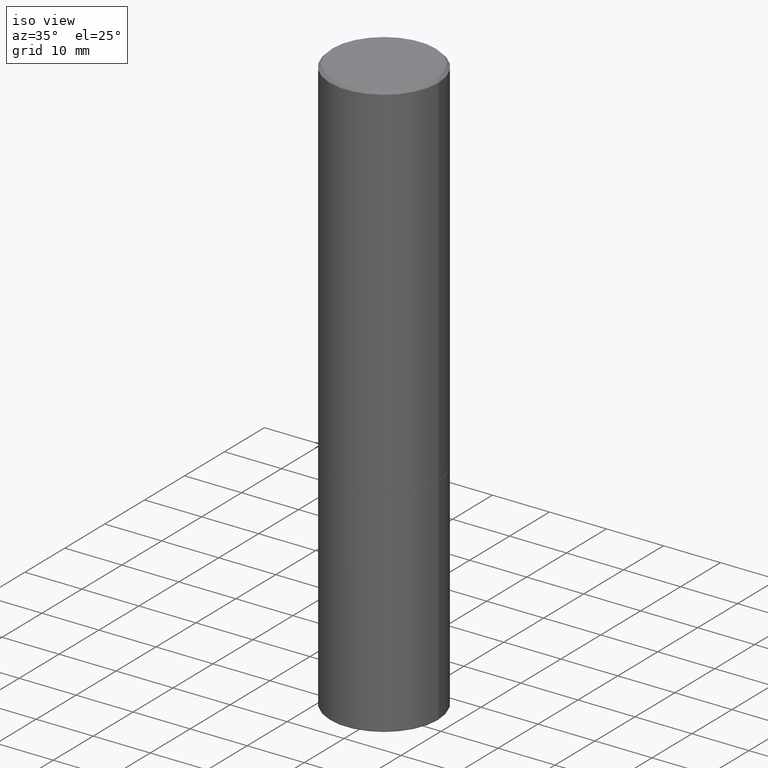
[diagram: clean part render]
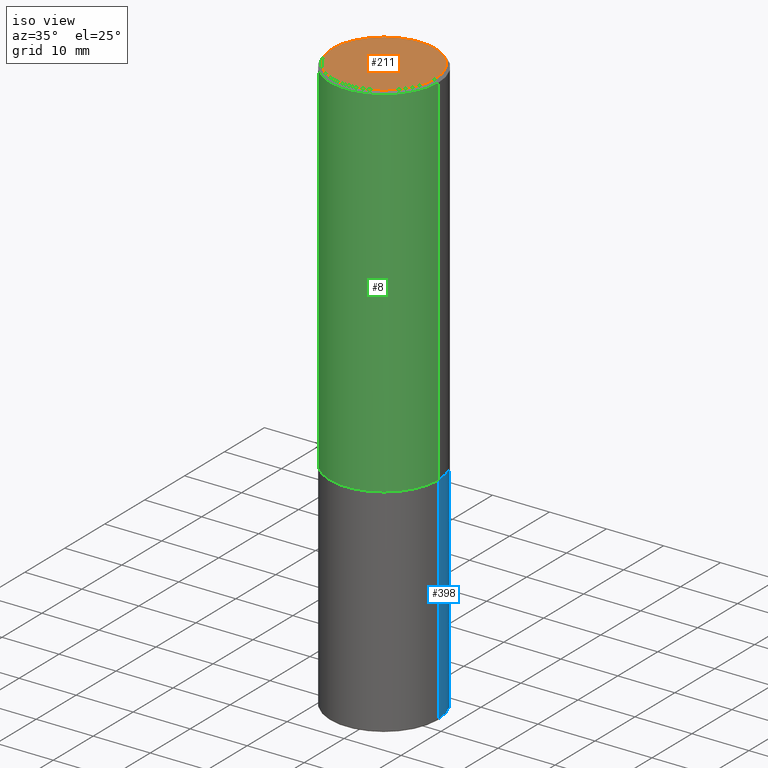
[diagram: same view with three faces highlighted in distinct colors, each labeled with its STEP entity id]
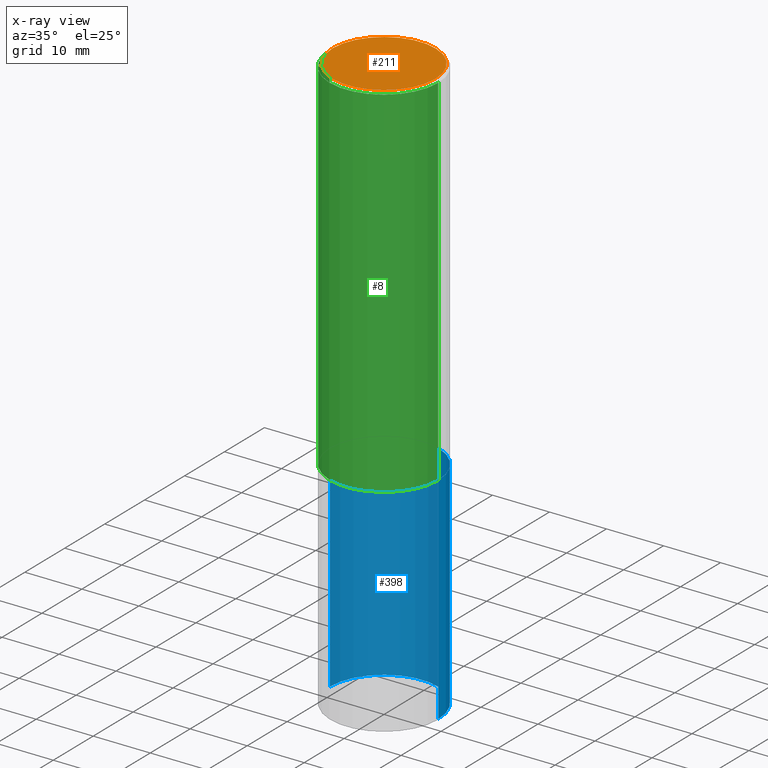
[diagram: x-ray of the same camera — body ghosted, the three highlighted faces saturated]
A machine part, iso view with three faces highlighted in distinct colors.
The next image is the same camera in x-ray (body ghosted, the three faces saturated) — at least one of them is partly hidden behind the body in this view.
Their STEP definitions:

[orange] entity #211 — the highlighted planar face has unit normal (0, -0, -1).
#1 = FACE_OUTER_BOUND ( 'NONE', #300, .T. ) ;
#64 = DIRECTION ( 'NONE',  ( -2.445468806185136597E-29, 3.491481338843145583E-15, 1.000000000000000000 ) ) ;
#79 = VERTEX_POINT ( 'NONE', #315 ) ;
#91 = CIRCLE ( 'NONE', #132, 0.3549999999999999822 ) ;
#93 = DIRECTION ( 'NONE',  ( 2.438088387897960049E-29, -3.491481338843145188E-15, -1.000000000000000000 ) ) ;
#96 = CARTESIAN_POINT ( 'NONE',  ( 0.3549999999999999822, -2.538996582575041048E-15, 1.195183497228290556E-16 ) ) ;
#108 = AXIS2_PLACEMENT_3D ( 'NONE', #157, #93, #379 ) ;
#129 = AXIS2_PLACEMENT_3D ( 'NONE', #188, #303, #191 ) ;
#132 = AXIS2_PLACEMENT_3D ( 'NONE', #278, #64, #376 ) ;
#154 = ORIENTED_EDGE ( 'NONE', *, *, #236, .T. ) ;
#157 = CARTESIAN_POINT ( 'NONE',  ( 2.478951750578624209E-15, 0.3549999999999999822, -1.179716700427910864E-15 ) ) ;
#188 = CARTESIAN_POINT ( 'NONE',  ( -2.922783960138615261E-45, 4.172960877065252270E-31, 1.195183497228115035E-16 ) ) ;
#191 = DIRECTION ( 'NONE',  ( 1.000000000000000000, -6.982962677686265922E-15, 4.874095744806113407E-29 ) ) ;
#211 = ADVANCED_FACE ( 'NONE', ( #1 ), #416, .F. ) ;
#217 = VERTEX_POINT ( 'NONE', #96 ) ;
#236 = EDGE_CURVE ( 'NONE', #79, #217, #91, .T. ) ;
#274 = CIRCLE ( 'NONE', #129, 0.3549999999999999822 ) ;
#275 = EDGE_CURVE ( 'NONE', #217, #79, #274, .T. ) ;
#278 = CARTESIAN_POINT ( 'NONE',  ( -2.922783960138615261E-45, 4.172960877065252270E-31, 1.195183497228115035E-16 ) ) ;
#293 = ORIENTED_EDGE ( 'NONE', *, *, #275, .T. ) ;
#300 = EDGE_LOOP ( 'NONE', ( #154, #293 ) ) ;
#303 = DIRECTION ( 'NONE',  ( -2.445468806185136597E-29, 3.491481338843145583E-15, 1.000000000000000000 ) ) ;
#315 = CARTESIAN_POINT ( 'NONE',  ( -0.3549999999999999822, 2.513866563967055858E-15, 1.195183497227940499E-16 ) ) ;
#376 = DIRECTION ( 'NONE',  ( 1.000000000000000000, -6.982962677686265922E-15, 4.874095744806113407E-29 ) ) ;
#379 = DIRECTION ( 'NONE',  ( -1.000000000000000000, 6.982962677686265922E-15, -4.876176775795935793E-29 ) ) ;
#416 = PLANE ( 'NONE',  #108 ) ;

[blue] entity #398 — the highlighted cylindrical surface (partial cylindrical patch) has radius 9.525 mm, axis along (-0, 0, 1).
#10 = CARTESIAN_POINT ( 'NONE',  ( 0.3750000000000000555, -1.134731435124021338E-14, -2.500000000000000000 ) ) ;
#15 = VECTOR ( 'NONE', #373, 39.37007874015748143 ) ;
#21 = AXIS2_PLACEMENT_3D ( 'NONE', #74, #206, #40 ) ;
#32 = LINE ( 'NONE', #33, #15 ) ;
#33 = CARTESIAN_POINT ( 'NONE',  ( -0.3749999999999999445, 2.664535259100375303E-15, -1.844600658845589318E-29 ) ) ;
#36 = DIRECTION ( 'NONE',  ( -2.445468806185136597E-29, 3.491481338843145583E-15, 1.000000000000000000 ) ) ;
#40 = DIRECTION ( 'NONE',  ( 1.000000000000000000, -6.982962677686264344E-15, 0.000000000000000000 ) ) ;
#43 = ORIENTED_EDGE ( 'NONE', *, *, #150, .F. ) ;
#55 = CARTESIAN_POINT ( 'NONE',  ( -0.3749999999999999445, -1.126647528288377341E-14, -3.989999999999999769 ) ) ;
#68 = DIRECTION ( 'NONE',  ( 1.000000000000000000, -6.982962677686263555E-15, 0.000000000000000000 ) ) ;
#69 = DIRECTION ( 'NONE',  ( -2.445468806185136597E-29, 3.491481338843145583E-15, 1.000000000000000000 ) ) ;
#74 = CARTESIAN_POINT ( 'NONE',  ( 6.113672015462842613E-29, -8.728703347107864943E-15, -2.500000000000000000 ) ) ;
#88 = VERTEX_POINT ( 'NONE', #10 ) ;
#92 = AXIS2_PLACEMENT_3D ( 'NONE', #258, #69, #318 ) ;
#114 = ORIENTED_EDGE ( 'NONE', *, *, #316, .T. ) ;
#117 = AXIS2_PLACEMENT_3D ( 'NONE', #201, #36, #68 ) ;
#143 = CARTESIAN_POINT ( 'NONE',  ( 0.3749999999999999445, -1.654962154611649754E-14, -3.989999999999999769 ) ) ;
#150 = EDGE_CURVE ( 'NONE', #88, #238, #361, .T. ) ;
#178 = VERTEX_POINT ( 'NONE', #143 ) ;
#201 = CARTESIAN_POINT ( 'NONE',  ( 9.757420536678694842E-29, -1.393101054198414910E-14, -3.989999999999999769 ) ) ;
#202 = CYLINDRICAL_SURFACE ( 'NONE', #92, 0.3749999999999999445 ) ;
#206 = DIRECTION ( 'NONE',  ( -2.445468806185136597E-29, 3.491481338843145583E-15, 1.000000000000000000 ) ) ;
#224 = EDGE_CURVE ( 'NONE', #178, #88, #276, .T. ) ;
#230 = EDGE_CURVE ( 'NONE', #273, #238, #32, .T. ) ;
#238 = VERTEX_POINT ( 'NONE', #312 ) ;
#252 = ORIENTED_EDGE ( 'NONE', *, *, #224, .F. ) ;
#258 = CARTESIAN_POINT ( 'NONE',  ( 0.000000000000000000, 0.000000000000000000, 0.000000000000000000 ) ) ;
#268 = ORIENTED_EDGE ( 'NONE', *, *, #230, .T. ) ;
#273 = VERTEX_POINT ( 'NONE', #55 ) ;
#276 = LINE ( 'NONE', #377, #333 ) ;
#310 = CIRCLE ( 'NONE', #117, 0.3749999999999999445 ) ;
#312 = CARTESIAN_POINT ( 'NONE',  ( -0.3750000000000000555, -8.665321685445630537E-15, -2.500000000000000000 ) ) ;
#314 = FACE_OUTER_BOUND ( 'NONE', #414, .T. ) ;
#316 = EDGE_CURVE ( 'NONE', #178, #273, #310, .T. ) ;
#318 = DIRECTION ( 'NONE',  ( 1.000000000000000000, -6.982962677686266711E-15, 4.876176775795935793E-29 ) ) ;
#333 = VECTOR ( 'NONE', #344, 39.37007874015748143 ) ;
#344 = DIRECTION ( 'NONE',  ( -2.445468806185136877E-29, 3.491481338843145188E-15, 1.000000000000000000 ) ) ;
#361 = CIRCLE ( 'NONE', #21, 0.3750000000000000555 ) ;
#373 = DIRECTION ( 'NONE',  ( -2.445468806185136877E-29, 3.491481338843145188E-15, 1.000000000000000000 ) ) ;
#377 = CARTESIAN_POINT ( 'NONE',  ( 0.3749999999999999445, -2.618611004132349622E-15, 1.828566290923475642E-29 ) ) ;
#398 = ADVANCED_FACE ( 'NONE', ( #314 ), #202, .T. ) ;
#414 = EDGE_LOOP ( 'NONE', ( #114, #268, #43, #252 ) ) ;

[green] entity #8 — the highlighted cylindrical surface (partial cylindrical patch) has radius 9.525 mm, axis along (-0, 0, 1).
#5 = AXIS2_PLACEMENT_3D ( 'NONE', #306, #101, #67 ) ;
#8 = ADVANCED_FACE ( 'NONE', ( #411 ), #65, .T. ) ;
#11 = VERTEX_POINT ( 'NONE', #324 ) ;
#13 = DIRECTION ( 'NONE',  ( -2.445468806185136877E-29, 3.491481338843145188E-15, 1.000000000000000000 ) ) ;
#48 = DIRECTION ( 'NONE',  ( -2.445468806185136597E-29, 3.491481338843145583E-15, 1.000000000000000000 ) ) ;
#59 = EDGE_CURVE ( 'NONE', #363, #210, #175, .T. ) ;
#65 = CYLINDRICAL_SURFACE ( 'NONE', #355, 0.3750000000000002220 ) ;
#67 = DIRECTION ( 'NONE',  ( 1.000000000000000000, -6.982962677686265922E-15, 0.000000000000000000 ) ) ;
#84 = ORIENTED_EDGE ( 'NONE', *, *, #186, .T. ) ;
#95 = LINE ( 'NONE', #173, #253 ) ;
#101 = DIRECTION ( 'NONE',  ( -2.445468806185136597E-29, 3.491481338843145583E-15, 1.000000000000000000 ) ) ;
#112 = CARTESIAN_POINT ( 'NONE',  ( 0.000000000000000000, 0.000000000000000000, 0.000000000000000000 ) ) ;
#120 = CARTESIAN_POINT ( 'NONE',  ( -0.3750000000000001110, 2.548781377355487113E-15, -0.02000000000000008715 ) ) ;
#163 = CARTESIAN_POINT ( 'NONE',  ( 0.3750000000000001110, -2.642516375941188423E-15, -0.02000000000000008715 ) ) ;
#167 = LINE ( 'NONE', #349, #184 ) ;
#171 = EDGE_CURVE ( 'NONE', #11, #363, #95, .T. ) ;
#173 = CARTESIAN_POINT ( 'NONE',  ( -0.3750000000000002220, 2.664535259100377275E-15, -1.844600658845590719E-29 ) ) ;
#175 = CIRCLE ( 'NONE', #5, 0.3750000000000001110 ) ;
#180 = EDGE_LOOP ( 'NONE', ( #329, #84, #298, #405 ) ) ;
#184 = VECTOR ( 'NONE', #197, 39.37007874015748143 ) ;
#186 = EDGE_CURVE ( 'NONE', #11, #370, #401, .T. ) ;
#197 = DIRECTION ( 'NONE',  ( -2.445468806185136877E-29, 3.491481338843145188E-15, 1.000000000000000000 ) ) ;
#210 = VERTEX_POINT ( 'NONE', #163 ) ;
#223 = DIRECTION ( 'NONE',  ( 1.000000000000000000, -6.982962677686265922E-15, 0.000000000000000000 ) ) ;
#225 = DIRECTION ( 'NONE',  ( -2.445468806185136597E-29, 3.491481338843145583E-15, 1.000000000000000000 ) ) ;
#253 = VECTOR ( 'NONE', #13, 39.37007874015748143 ) ;
#288 = CARTESIAN_POINT ( 'NONE',  ( 0.3750000000000002776, -1.134382286990137353E-14, -2.499000000000000110 ) ) ;
#294 = EDGE_CURVE ( 'NONE', #370, #210, #167, .T. ) ;
#298 = ORIENTED_EDGE ( 'NONE', *, *, #294, .T. ) ;
#306 = CARTESIAN_POINT ( 'NONE',  ( 4.890937612370294178E-31, -6.982962677686321191E-17, -0.02000000000000008715 ) ) ;
#324 = CARTESIAN_POINT ( 'NONE',  ( -0.3750000000000002776, -1.732985487172563764E-15, -2.499000000000000110 ) ) ;
#329 = ORIENTED_EDGE ( 'NONE', *, *, #171, .F. ) ;
#348 = DIRECTION ( 'NONE',  ( 1.000000000000000000, -6.982962677686266711E-15, 4.876176775795935793E-29 ) ) ;
#349 = CARTESIAN_POINT ( 'NONE',  ( 0.3750000000000002220, -2.618611004132351594E-15, 1.828566290923477043E-29 ) ) ;
#355 = AXIS2_PLACEMENT_3D ( 'NONE', #112, #48, #348 ) ;
#363 = VERTEX_POINT ( 'NONE', #120 ) ;
#370 = VERTEX_POINT ( 'NONE', #288 ) ;
#382 = CARTESIAN_POINT ( 'NONE',  ( 6.111226546656657010E-29, -8.725211865769021935E-15, -2.499000000000000110 ) ) ;
#401 = CIRCLE ( 'NONE', #409, 0.3750000000000002776 ) ;
#405 = ORIENTED_EDGE ( 'NONE', *, *, #59, .F. ) ;
#409 = AXIS2_PLACEMENT_3D ( 'NONE', #382, #225, #223 ) ;
#411 = FACE_OUTER_BOUND ( 'NONE', #180, .T. ) ;